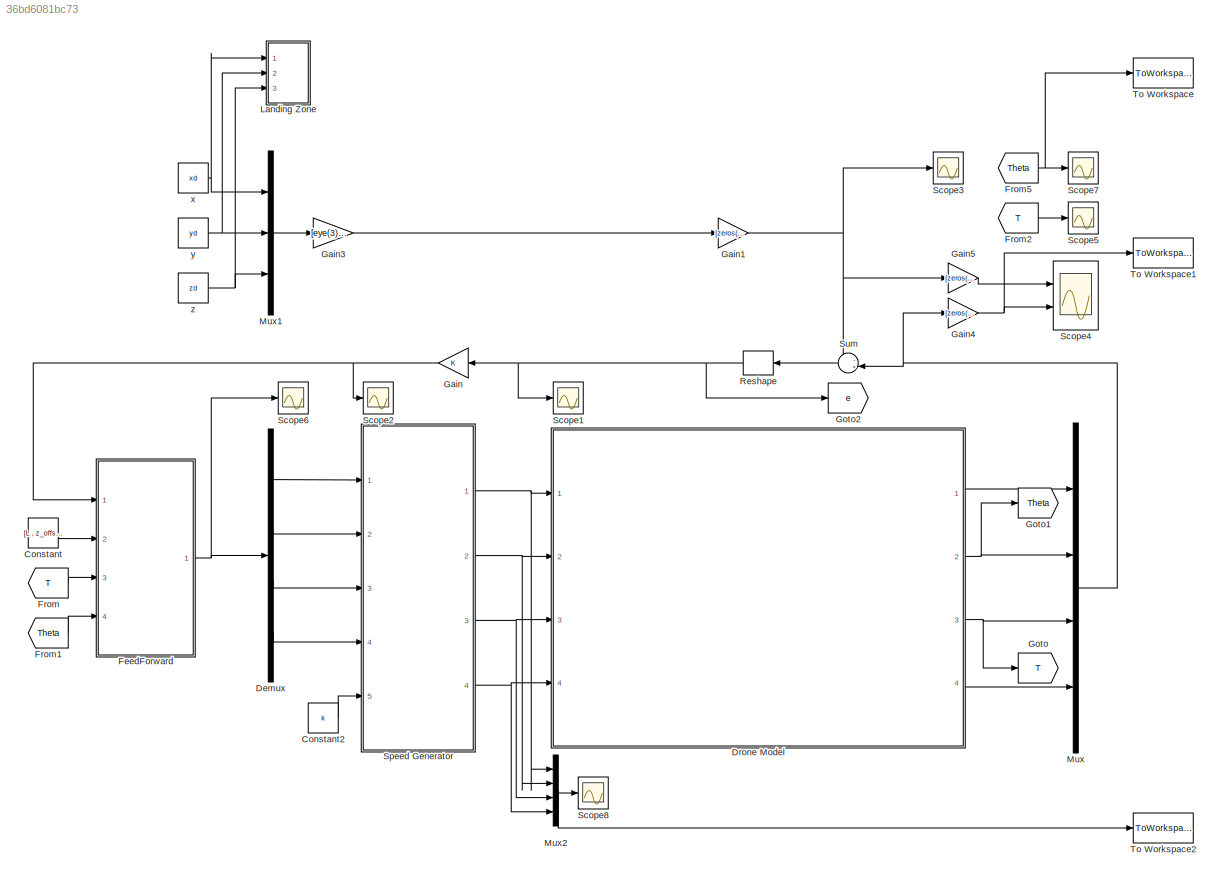
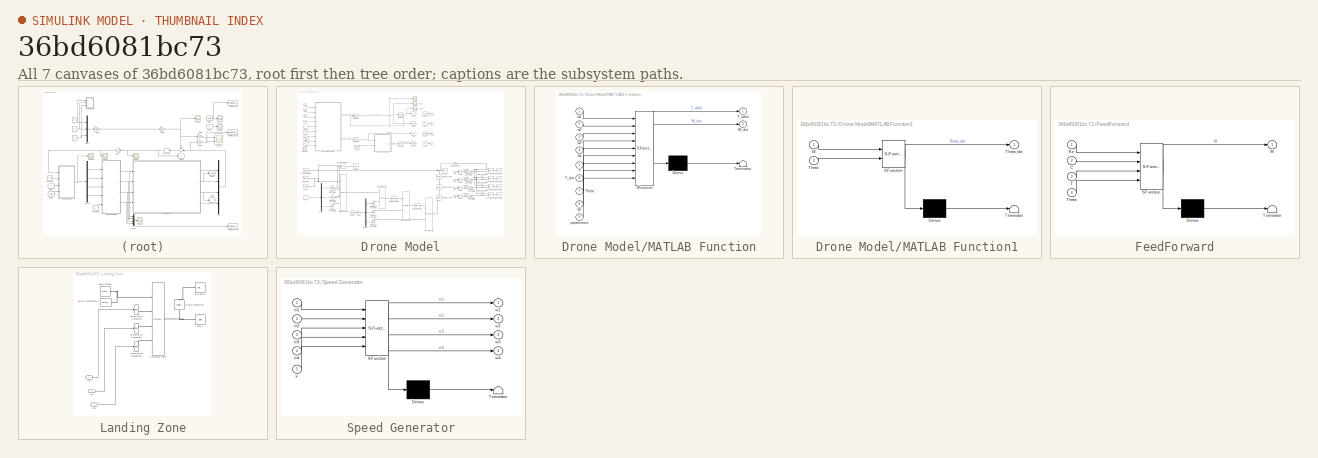
[diagram: thumbnail index - all 7 canvases of the model, root first then tree order]
MODEL slx_36bd6081bc73
KIND model
CONFIG AbsTol = auto
CONFIG EnableMultiTasking = off
CONFIG FixedStep = 0.001
CONFIG MaxStep = 0.001
CONFIG MinStep = 0.0001
CONFIG RelTol = 1e-3
CONFIG SampleTimeConstraint = Unconstrained
CONFIG Solver = ode45
CONFIG SolverName = ode45
CONFIG StartTime = 0.0
CONFIG StopTime = 30
BLOCK [Constant] Constant
  Value = [L , z_offset , r , mq , g]
BLOCK [Constant] Constant2
  Value = k
BLOCK [Demux] Demux
  DisplayOption = bar
  Ports = [1, 4]
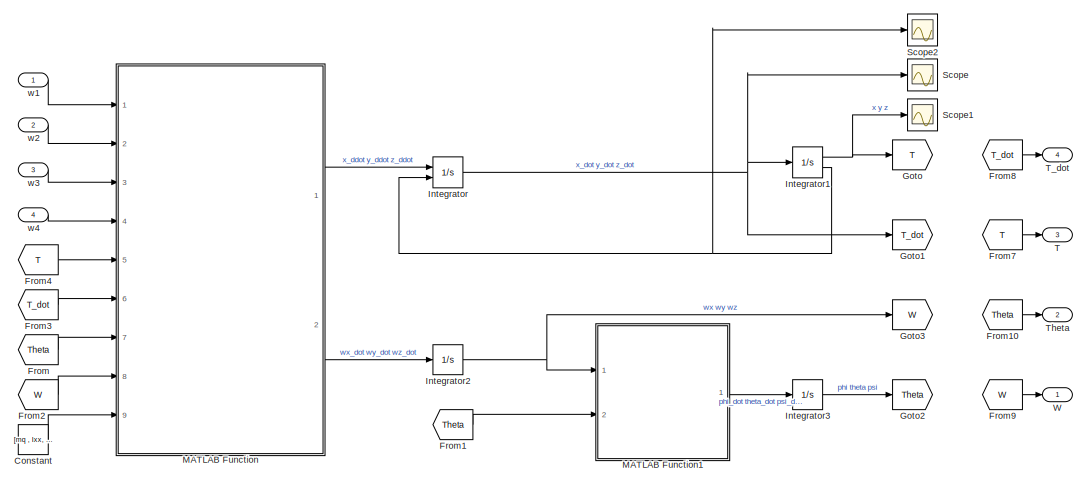
[diagram: Drone Model - part 1/3, top center region]
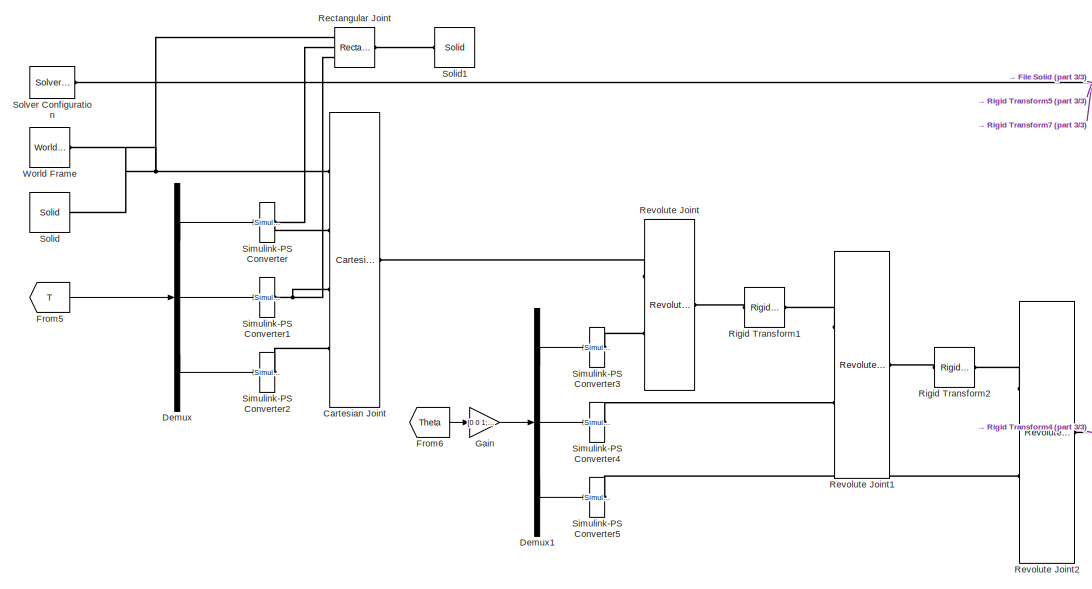
[diagram: Drone Model - part 2/3, bottom left region]
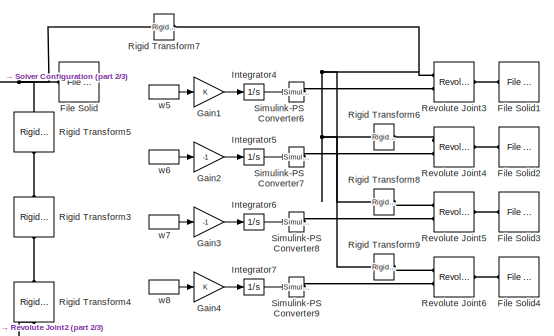
[diagram: Drone Model - part 3/3, middle right region]
BLOCK [SubSystem] Drone Model
  Ports = [4, 4]
  RequestExecContextInheritance = off
BLOCK [Reference] Drone Model/Cartesian Joint  REF=sm_lib/Joints/Cartesian
Joint
  Ports = [0, 0, 0, 0, 0, 4, 1]
  SourceBlock = sm_lib/Joints/Cartesian\nJoint
  SourceProductBaseCode = MS
  SourceProductName = Simscape Multibody
  SourceType = Cartesian\nJoint
BLOCK [Constant] Drone Model/Constant
  Value = [mq , Ixx, Iyy , Izz , k , L , b , kd , rho , r , z_offset , g];
BLOCK [Demux] Drone Model/Demux
  DisplayOption = bar
  Outputs = 3
  Ports = [1, 3]
BLOCK [Demux] Drone Model/Demux1
  DisplayOption = bar
  Outputs = 3
  Ports = [1, 3]
BLOCK [Reference] Drone Model/File Solid  REF=sm_lib/Body Elements/File Solid
  Ports = [0, 0, 0, 0, 0, 0, 1]
  SourceBlock = sm_lib/Body Elements/File Solid
  SourceProductBaseCode = MS
  SourceProductName = Simscape Multibody
  SourceType = File Solid
BLOCK [Reference] Drone Model/File Solid1  REF=sm_lib/Body Elements/File Solid
  Ports = [0, 0, 0, 0, 0, 0, 1]
  SourceBlock = sm_lib/Body Elements/File Solid
  SourceProductBaseCode = MS
  SourceProductName = Simscape Multibody
  SourceType = File Solid
BLOCK [Reference] Drone Model/File Solid2  REF=sm_lib/Body Elements/File Solid
  Ports = [0, 0, 0, 0, 0, 0, 1]
  SourceBlock = sm_lib/Body Elements/File Solid
  SourceProductBaseCode = MS
  SourceProductName = Simscape Multibody
  SourceType = File Solid
BLOCK [Reference] Drone Model/File Solid3  REF=sm_lib/Body Elements/File Solid
  Ports = [0, 0, 0, 0, 0, 0, 1]
  SourceBlock = sm_lib/Body Elements/File Solid
  SourceProductBaseCode = MS
  SourceProductName = Simscape Multibody
  SourceType = File Solid
BLOCK [Reference] Drone Model/File Solid4  REF=sm_lib/Body Elements/File Solid
  Ports = [0, 0, 0, 0, 0, 0, 1]
  SourceBlock = sm_lib/Body Elements/File Solid
  SourceProductBaseCode = MS
  SourceProductName = Simscape Multibody
  SourceType = File Solid
BLOCK [From] Drone Model/From
  GotoTag = Theta
BLOCK [From] Drone Model/From1
  GotoTag = Theta
BLOCK [From] Drone Model/From10
  GotoTag = Theta
BLOCK [From] Drone Model/From2
  GotoTag = W
BLOCK [From] Drone Model/From3
  GotoTag = T_dot
BLOCK [From] Drone Model/From4
  GotoTag = T
BLOCK [From] Drone Model/From5
  GotoTag = T
BLOCK [From] Drone Model/From6
  GotoTag = Theta
BLOCK [From] Drone Model/From7
  GotoTag = T
BLOCK [From] Drone Model/From8
  GotoTag = T_dot
BLOCK [From] Drone Model/From9
  GotoTag = W
BLOCK [Gain] Drone Model/Gain
  Gain = [0 0 1;0 1 0;1 0 0]
  Multiplication = Matrix(K*u)
  OutDataTypeStr = Inherit: Inherit via internal rule
  ParamDataTypeStr = Inherit: Inherit via internal rule
  SaturateOnIntegerOverflow = off
BLOCK [Gain] Drone Model/Gain1
  OutDataTypeStr = Inherit: Inherit via internal rule
  ParamDataTypeStr = Inherit: Inherit via internal rule
  SaturateOnIntegerOverflow = off
BLOCK [Gain] Drone Model/Gain2
  Gain = -1
  OutDataTypeStr = Inherit: Inherit via internal rule
  ParamDataTypeStr = Inherit: Inherit via internal rule
  SaturateOnIntegerOverflow = off
BLOCK [Gain] Drone Model/Gain3
  Gain = -1
  OutDataTypeStr = Inherit: Inherit via internal rule
  ParamDataTypeStr = Inherit: Inherit via internal rule
  SaturateOnIntegerOverflow = off
BLOCK [Gain] Drone Model/Gain4
  OutDataTypeStr = Inherit: Inherit via internal rule
  ParamDataTypeStr = Inherit: Inherit via internal rule
  SaturateOnIntegerOverflow = off
BLOCK [Goto] Drone Model/Goto
  GotoTag = T
BLOCK [Goto] Drone Model/Goto1
  GotoTag = T_dot
BLOCK [Goto] Drone Model/Goto2
  GotoTag = Theta
BLOCK [Goto] Drone Model/Goto3
  GotoTag = W
BLOCK [Integrator] Drone Model/Integrator
  ExternalReset = either
  InitialCondition = [0;0;0]
  Ports = [2, 1]
BLOCK [Integrator] Drone Model/Integrator1
  InitialCondition = [0;0;1]
  LimitOutput = on
  LowerSaturationLimit = [-inf;-inf;0]
  Ports = [1, 2]
  ShowSaturationPort = on
  UpperSaturationLimit = [inf;inf;inf]
BLOCK [Integrator] Drone Model/Integrator2
  InitialCondition = [0;0;0]
  Ports = [1, 1]
BLOCK [Integrator] Drone Model/Integrator3
  InitialCondition = [0;0;0]
  Ports = [1, 1]
BLOCK [Integrator] Drone Model/Integrator4
  Ports = [1, 1]
BLOCK [Integrator] Drone Model/Integrator5
  Ports = [1, 1]
BLOCK [Integrator] Drone Model/Integrator6
  Ports = [1, 1]
BLOCK [Integrator] Drone Model/Integrator7
  Ports = [1, 1]
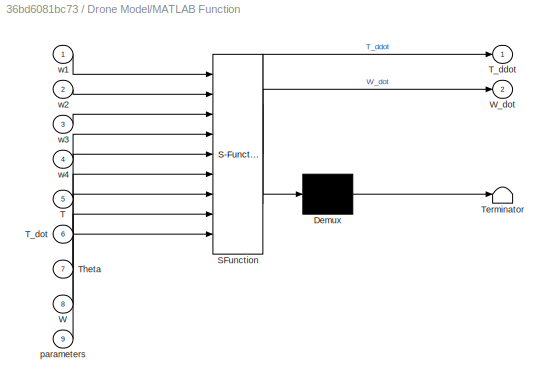
BLOCK [SubSystem] Drone Model/MATLAB Function
  ErrorFcn = Stateflow.Translate.translate
  PermitHierarchicalResolution = ExplicitOnly
  Ports = [9, 2]
  RequestExecContextInheritance = off
  SFBlockType = MATLAB Function
  TreatAsAtomicUnit = on
BLOCK [Demux] Drone Model/MATLAB Function/ Demux 
  Outputs = 1
  Ports = [1, 1]
BLOCK [S-Function] Drone Model/MATLAB Function/ SFunction 
  EnableBusSupport = on
  FunctionName = sf_sfun
  PortCounts = [9 3]
  Ports = [9, 3]
  SFcnIsStateOwnerBlock = off
  SFunctionDeploymentMode = off
  Tag = Stateflow S-Function quad_simulation_with_linearization_around_wrench 2
BLOCK [Terminator] Drone Model/MATLAB Function/ Terminator 
BLOCK [Inport] Drone Model/MATLAB Function/T
  IconDisplay = Port number
  Port = 5
BLOCK [Outport] Drone Model/MATLAB Function/T_ddot
  IconDisplay = Port number
BLOCK [Inport] Drone Model/MATLAB Function/T_dot
  IconDisplay = Port number
  Port = 6
BLOCK [Inport] Drone Model/MATLAB Function/Theta
  IconDisplay = Port number
  Port = 7
BLOCK [Inport] Drone Model/MATLAB Function/W
  IconDisplay = Port number
  Port = 8
BLOCK [Outport] Drone Model/MATLAB Function/W_dot
  IconDisplay = Port number
  Port = 2
BLOCK [Inport] Drone Model/MATLAB Function/parameters
  IconDisplay = Port number
  Port = 9
BLOCK [Inport] Drone Model/MATLAB Function/w1
  IconDisplay = Port number
BLOCK [Inport] Drone Model/MATLAB Function/w2
  IconDisplay = Port number
  Port = 2
BLOCK [Inport] Drone Model/MATLAB Function/w3
  IconDisplay = Port number
  Port = 3
BLOCK [Inport] Drone Model/MATLAB Function/w4
  IconDisplay = Port number
  Port = 4
BLOCK [SubSystem] Drone Model/MATLAB Function1
  ErrorFcn = Stateflow.Translate.translate
  PermitHierarchicalResolution = ExplicitOnly
  Ports = [2, 1]
  RequestExecContextInheritance = off
  SFBlockType = MATLAB Function
  TreatAsAtomicUnit = on
BLOCK [Demux] Drone Model/MATLAB Function1/ Demux 
  Outputs = 1
  Ports = [1, 1]
BLOCK [S-Function] Drone Model/MATLAB Function1/ SFunction 
  EnableBusSupport = on
  FunctionName = sf_sfun
  PortCounts = [2 2]
  Ports = [2, 2]
  SFcnIsStateOwnerBlock = off
  SFunctionDeploymentMode = off
  Tag = Stateflow S-Function quad_simulation_with_linearization_around_wrench 1
BLOCK [Terminator] Drone Model/MATLAB Function1/ Terminator 
BLOCK [Inport] Drone Model/MATLAB Function1/Theta
  IconDisplay = Port number
  Port = 2
BLOCK [Outport] Drone Model/MATLAB Function1/Theta_dot
  IconDisplay = Port number
BLOCK [Inport] Drone Model/MATLAB Function1/W
  IconDisplay = Port number
BLOCK [Reference] Drone Model/Rectangular Joint  REF=sm_lib/Joints/Rectangular
Joint
  Ports = [0, 0, 0, 0, 0, 3, 1]
  SourceBlock = sm_lib/Joints/Rectangular\nJoint
  SourceProductBaseCode = MS
  SourceProductName = Simscape Multibody
  SourceType = Rectangular\nJoint
BLOCK [Reference] Drone Model/Revolute Joint  REF=sm_lib/Joints/Revolute Joint
  Ports = [0, 0, 0, 0, 0, 2, 1]
  SourceBlock = sm_lib/Joints/Revolute Joint
  SourceProductBaseCode = MS
  SourceProductName = Simscape Multibody
  SourceType = Revolute Joint
BLOCK [Reference] Drone Model/Revolute Joint1  REF=sm_lib/Joints/Revolute Joint
  Ports = [0, 0, 0, 0, 0, 2, 1]
  SourceBlock = sm_lib/Joints/Revolute Joint
  SourceProductBaseCode = MS
  SourceProductName = Simscape Multibody
  SourceType = Revolute Joint
BLOCK [Reference] Drone Model/Revolute Joint2  REF=sm_lib/Joints/Revolute Joint
  Ports = [0, 0, 0, 0, 0, 2, 1]
  SourceBlock = sm_lib/Joints/Revolute Joint
  SourceProductBaseCode = MS
  SourceProductName = Simscape Multibody
  SourceType = Revolute Joint
BLOCK [Reference] Drone Model/Revolute Joint3  REF=sm_lib/Joints/Revolute Joint
  Ports = [0, 0, 0, 0, 0, 2, 1]
  SourceBlock = sm_lib/Joints/Revolute Joint
  SourceProductBaseCode = MS
  SourceProductName = Simscape Multibody
  SourceType = Revolute Joint
BLOCK [Reference] Drone Model/Revolute Joint4  REF=sm_lib/Joints/Revolute Joint
  Ports = [0, 0, 0, 0, 0, 2, 1]
  SourceBlock = sm_lib/Joints/Revolute Joint
  SourceProductBaseCode = MS
  SourceProductName = Simscape Multibody
  SourceType = Revolute Joint
BLOCK [Reference] Drone Model/Revolute Joint5  REF=sm_lib/Joints/Revolute Joint
  Ports = [0, 0, 0, 0, 0, 2, 1]
  SourceBlock = sm_lib/Joints/Revolute Joint
  SourceProductBaseCode = MS
  SourceProductName = Simscape Multibody
  SourceType = Revolute Joint
BLOCK [Reference] Drone Model/Revolute Joint6  REF=sm_lib/Joints/Revolute Joint
  Ports = [0, 0, 0, 0, 0, 2, 1]
  SourceBlock = sm_lib/Joints/Revolute Joint
  SourceProductBaseCode = MS
  SourceProductName = Simscape Multibody
  SourceType = Revolute Joint
BLOCK [Reference] Drone Model/Rigid Transform1  REF=sm_lib/Frames and
Transforms/Rigid
Transform
  Ports = [0, 0, 0, 0, 0, 1, 1]
  SourceBlock = sm_lib/Frames and\nTransforms/Rigid\nTransform
  SourceProductBaseCode = MS
  SourceProductName = Simscape Multibody
  SourceType = Rigid\nTransform
BLOCK [Reference] Drone Model/Rigid Transform2  REF=sm_lib/Frames and
Transforms/Rigid
Transform
  Ports = [0, 0, 0, 0, 0, 1, 1]
  SourceBlock = sm_lib/Frames and\nTransforms/Rigid\nTransform
  SourceProductBaseCode = MS
  SourceProductName = Simscape Multibody
  SourceType = Rigid\nTransform
BLOCK [Reference] Drone Model/Rigid Transform3  REF=sm_lib/Frames and
Transforms/Rigid
Transform
  Ports = [0, 0, 0, 0, 0, 1, 1]
  SourceBlock = sm_lib/Frames and\nTransforms/Rigid\nTransform
  SourceProductBaseCode = MS
  SourceProductName = Simscape Multibody
  SourceType = Rigid\nTransform
BLOCK [Reference] Drone Model/Rigid Transform4  REF=sm_lib/Frames and
Transforms/Rigid
Transform
  Ports = [0, 0, 0, 0, 0, 1, 1]
  SourceBlock = sm_lib/Frames and\nTransforms/Rigid\nTransform
  SourceProductBaseCode = MS
  SourceProductName = Simscape Multibody
  SourceType = Rigid\nTransform
BLOCK [Reference] Drone Model/Rigid Transform5  REF=sm_lib/Frames and
Transforms/Rigid
Transform
  Ports = [0, 0, 0, 0, 0, 1, 1]
  SourceBlock = sm_lib/Frames and\nTransforms/Rigid\nTransform
  SourceProductBaseCode = MS
  SourceProductName = Simscape Multibody
  SourceType = Rigid\nTransform
BLOCK [Reference] Drone Model/Rigid Transform6  REF=sm_lib/Frames and
Transforms/Rigid
Transform
  Ports = [0, 0, 0, 0, 0, 1, 1]
  SourceBlock = sm_lib/Frames and\nTransforms/Rigid\nTransform
  SourceProductBaseCode = MS
  SourceProductName = Simscape Multibody
  SourceType = Rigid\nTransform
BLOCK [Reference] Drone Model/Rigid Transform7  REF=sm_lib/Frames and
Transforms/Rigid
Transform
  Ports = [0, 0, 0, 0, 0, 1, 1]
  SourceBlock = sm_lib/Frames and\nTransforms/Rigid\nTransform
  SourceProductBaseCode = MS
  SourceProductName = Simscape Multibody
  SourceType = Rigid\nTransform
BLOCK [Reference] Drone Model/Rigid Transform8  REF=sm_lib/Frames and
Transforms/Rigid
Transform
  Ports = [0, 0, 0, 0, 0, 1, 1]
  SourceBlock = sm_lib/Frames and\nTransforms/Rigid\nTransform
  SourceProductBaseCode = MS
  SourceProductName = Simscape Multibody
  SourceType = Rigid\nTransform
BLOCK [Reference] Drone Model/Rigid Transform9  REF=sm_lib/Frames and
Transforms/Rigid
Transform
  Ports = [0, 0, 0, 0, 0, 1, 1]
  SourceBlock = sm_lib/Frames and\nTransforms/Rigid\nTransform
  SourceProductBaseCode = MS
  SourceProductName = Simscape Multibody
  SourceType = Rigid\nTransform
BLOCK [Scope] Drone Model/Scope
  Floating = off
  NumInputPorts = 1
  Ports = [1]
  ScopeSpecificationString = Simulink.scopes.TimeScopeBlockCfg('CurrentConfiguration', extmgr.ConfigurationSet(extmgr.Configuration('Core','General UI',true),extmgr.Configuration('Core','Source UI',true),extmgr.Configuration('Sources','WiredSimulink',true),extmgr.Configuration('Visuals','Time Domain',true,'SerializedDisplays',{struct('MinYLimReal','-1.15491','MaxYLimReal','0.61229','YLabelReal','','MinYLimMag','0.00000','MaxY...<+1412ch>
BLOCK [Scope] Drone Model/Scope1
  Floating = off
  NumInputPorts = 1
  Ports = [1]
  ScopeSpecificationString = Simulink.scopes.TimeScopeBlockCfg('CurrentConfiguration', extmgr.ConfigurationSet(extmgr.Configuration('Core','General UI',true),extmgr.Configuration('Core','Source UI',true),extmgr.Configuration('Sources','WiredSimulink',true,'DataLoggingVariableName','ScopeData1'),extmgr.Configuration('Visuals','Time Domain',true,'SerializedDisplays',{struct('MinYLimReal','-12.5','MaxYLimReal','112.5','YLabelRea...<+1401ch>
BLOCK [Scope] Drone Model/Scope2
  Floating = off
  NumInputPorts = 1
  Ports = [1]
  ScopeSpecificationString = Simulink.scopes.TimeScopeBlockCfg('CurrentConfiguration', extmgr.ConfigurationSet(extmgr.Configuration('Core','General UI',true),extmgr.Configuration('Core','Source UI',true),extmgr.Configuration('Sources','WiredSimulink',true,'DataLoggingVariableName','ScopeData2'),extmgr.Configuration('Visuals','Time Domain',true,'SerializedDisplays',{struct('MinYLimReal','-1.125','MaxYLimReal','0.125','YLabelRe...<+1425ch>
BLOCK [Reference] Drone Model/Simulink-PS Converter  REF=nesl_utility/Simulink-PS
Converter
  Ports = [1, 0, 0, 0, 0, 0, 1]
  SourceBlock = nesl_utility/Simulink-PS\nConverter
  SourceProductBaseCode = SS
  SourceProductName = Simscape
  SourceType = Simulink-PS\nConverter
BLOCK [Reference] Drone Model/Simulink-PS Converter1  REF=nesl_utility/Simulink-PS
Converter
  Ports = [1, 0, 0, 0, 0, 0, 1]
  SourceBlock = nesl_utility/Simulink-PS\nConverter
  SourceProductBaseCode = SS
  SourceProductName = Simscape
  SourceType = Simulink-PS\nConverter
BLOCK [Reference] Drone Model/Simulink-PS Converter2  REF=nesl_utility/Simulink-PS
Converter
  Ports = [1, 0, 0, 0, 0, 0, 1]
  SourceBlock = nesl_utility/Simulink-PS\nConverter
  SourceProductBaseCode = SS
  SourceProductName = Simscape
  SourceType = Simulink-PS\nConverter
BLOCK [Reference] Drone Model/Simulink-PS Converter3  REF=nesl_utility/Simulink-PS
Converter
  Ports = [1, 0, 0, 0, 0, 0, 1]
  SourceBlock = nesl_utility/Simulink-PS\nConverter
  SourceProductBaseCode = SS
  SourceProductName = Simscape
  SourceType = Simulink-PS\nConverter
BLOCK [Reference] Drone Model/Simulink-PS Converter4  REF=nesl_utility/Simulink-PS
Converter
  Ports = [1, 0, 0, 0, 0, 0, 1]
  SourceBlock = nesl_utility/Simulink-PS\nConverter
  SourceProductBaseCode = SS
  SourceProductName = Simscape
  SourceType = Simulink-PS\nConverter
BLOCK [Reference] Drone Model/Simulink-PS Converter5  REF=nesl_utility/Simulink-PS
Converter
  Ports = [1, 0, 0, 0, 0, 0, 1]
  SourceBlock = nesl_utility/Simulink-PS\nConverter
  SourceProductBaseCode = SS
  SourceProductName = Simscape
  SourceType = Simulink-PS\nConverter
BLOCK [Reference] Drone Model/Simulink-PS Converter6  REF=nesl_utility/Simulink-PS
Converter
  Ports = [1, 0, 0, 0, 0, 0, 1]
  SourceBlock = nesl_utility/Simulink-PS\nConverter
  SourceProductBaseCode = SS
  SourceProductName = Simscape
  SourceType = Simulink-PS\nConverter
BLOCK [Reference] Drone Model/Simulink-PS Converter7  REF=nesl_utility/Simulink-PS
Converter
  Ports = [1, 0, 0, 0, 0, 0, 1]
  SourceBlock = nesl_utility/Simulink-PS\nConverter
  SourceProductBaseCode = SS
  SourceProductName = Simscape
  SourceType = Simulink-PS\nConverter
BLOCK [Reference] Drone Model/Simulink-PS Converter8  REF=nesl_utility/Simulink-PS
Converter
  Ports = [1, 0, 0, 0, 0, 0, 1]
  SourceBlock = nesl_utility/Simulink-PS\nConverter
  SourceProductBaseCode = SS
  SourceProductName = Simscape
  SourceType = Simulink-PS\nConverter
BLOCK [Reference] Drone Model/Simulink-PS Converter9  REF=nesl_utility/Simulink-PS
Converter
  Ports = [1, 0, 0, 0, 0, 0, 1]
  SourceBlock = nesl_utility/Simulink-PS\nConverter
  SourceProductBaseCode = SS
  SourceProductName = Simscape
  SourceType = Simulink-PS\nConverter
BLOCK [Reference] Drone Model/Solid  REF=sm_lib/Body Elements/Solid
  Ports = [0, 0, 0, 0, 0, 0, 1]
  SourceBlock = sm_lib/Body Elements/Solid
  SourceProductBaseCode = MS
  SourceProductName = Simscape Multibody
  SourceType = Solid
BLOCK [Reference] Drone Model/Solid1  REF=sm_lib/Body Elements/Solid
  Ports = [0, 0, 0, 0, 0, 0, 1]
  SourceBlock = sm_lib/Body Elements/Solid
  SourceProductBaseCode = MS
  SourceProductName = Simscape Multibody
  SourceType = Solid
BLOCK [Reference] Drone Model/Solver Configuration  REF=nesl_utility/Solver
Configuration
  Ports = [0, 0, 0, 0, 0, 0, 1]
  SourceBlock = nesl_utility/Solver\nConfiguration
  SourceProductBaseCode = SS
  SourceProductName = Simscape
  SourceType = Solver\nConfiguration
BLOCK [Outport] Drone Model/T
  IconDisplay = Port number
  Port = 3
BLOCK [Outport] Drone Model/T_dot
  IconDisplay = Port number
  Port = 4
BLOCK [Outport] Drone Model/Theta
  IconDisplay = Port number
  Port = 2
BLOCK [Outport] Drone Model/W
  IconDisplay = Port number
BLOCK [Reference] Drone Model/World Frame  REF=sm_lib/Frames and
Transforms/World Frame
  Ports = [0, 0, 0, 0, 0, 0, 1]
  SourceBlock = sm_lib/Frames and\nTransforms/World Frame
  SourceProductBaseCode = MS
  SourceProductName = Simscape Multibody
  SourceType = World Frame
BLOCK [Inport] Drone Model/w1
  IconDisplay = Port number
BLOCK [Inport] Drone Model/w2
  IconDisplay = Port number
  Port = 2
BLOCK [Inport] Drone Model/w3
  IconDisplay = Port number
  Port = 3
BLOCK [Inport] Drone Model/w4
  IconDisplay = Port number
  Port = 4
BLOCK [InportShadow] Drone Model/w5
  IconDisplay = Port number
BLOCK [InportShadow] Drone Model/w6
  IconDisplay = Port number
  Port = 2
BLOCK [InportShadow] Drone Model/w7
  IconDisplay = Port number
  Port = 3
BLOCK [InportShadow] Drone Model/w8
  IconDisplay = Port number
  Port = 4
BLOCK [SubSystem] FeedForward
  ErrorFcn = Stateflow.Translate.translate
  PermitHierarchicalResolution = ExplicitOnly
  Ports = [4, 1]
  RequestExecContextInheritance = off
  SFBlockType = MATLAB Function
  TreatAsAtomicUnit = on
BLOCK [Demux] FeedForward/ Demux 
  Outputs = 1
  Ports = [1, 1]
BLOCK [S-Function] FeedForward/ SFunction 
  EnableBusSupport = on
  FunctionName = sf_sfun
  PortCounts = [4 2]
  Ports = [4, 2]
  SFcnIsStateOwnerBlock = off
  SFunctionDeploymentMode = off
  Tag = Stateflow S-Function quad_simulation_with_linearization_around_wrench 4
BLOCK [Terminator] FeedForward/ Terminator 
BLOCK [Inport] FeedForward/C
  IconDisplay = Port number
  Port = 2
BLOCK [Inport] FeedForward/Ke
  IconDisplay = Port number
BLOCK [Outport] FeedForward/M
  IconDisplay = Port number
BLOCK [Inport] FeedForward/T
  IconDisplay = Port number
  Port = 3
BLOCK [Inport] FeedForward/Theta
  IconDisplay = Port number
  Port = 4
BLOCK [From] From
  GotoTag = T
BLOCK [From] From1
  GotoTag = Theta
BLOCK [From] From2
  GotoTag = T
BLOCK [From] From5
  GotoTag = Theta
BLOCK [Gain] Gain
  Gain = K
  Multiplication = Matrix(K*u) (u vector)
  OutDataTypeStr = Inherit: Inherit via internal rule
  ParamDataTypeStr = Inherit: Inherit via internal rule
  SaturateOnIntegerOverflow = off
BLOCK [Gain] Gain1
  Gain = [zeros(6);diag([1,1,1,0,0,0])]
  Multiplication = Matrix(K*u) (u vector)
  OutDataTypeStr = Inherit: Inherit via internal rule
  ParamDataTypeStr = Inherit: Inherit via internal rule
  SaturateOnIntegerOverflow = off
BLOCK [Gain] Gain3
  Gain = [eye(3);zeros(3)]
  Multiplication = Matrix(K*u) (u vector)
  OutDataTypeStr = Inherit: Inherit via internal rule
  ParamDataTypeStr = Inherit: Inherit via internal rule
  SaturateOnIntegerOverflow = off
BLOCK [Gain] Gain4
  Gain = [zeros(3,6) , eye(3) , zeros(3)]
  Multiplication = Matrix(K*u) (u vector)
  OutDataTypeStr = Inherit: Inherit via internal rule
  ParamDataTypeStr = Inherit: Inherit via internal rule
  SaturateOnIntegerOverflow = off
BLOCK [Gain] Gain5
  Gain = [zeros(3,6) , eye(3) , zeros(3)]
  Multiplication = Matrix(K*u) (u vector)
  OutDataTypeStr = Inherit: Inherit via internal rule
  ParamDataTypeStr = Inherit: Inherit via internal rule
  SaturateOnIntegerOverflow = off
BLOCK [Goto] Goto
  GotoTag = T
BLOCK [Goto] Goto1
  GotoTag = Theta
BLOCK [Goto] Goto2
  GotoTag = e
BLOCK [SubSystem] Landing Zone
  Ports = [3]
  RequestExecContextInheritance = off
BLOCK [Reference] Landing Zone/Cartesian Joint  REF=sm_lib/Joints/Cartesian
Joint
  Ports = [0, 0, 0, 0, 0, 4, 1]
  SourceBlock = sm_lib/Joints/Cartesian\nJoint
  SourceProductBaseCode = MS
  SourceProductName = Simscape Multibody
  SourceType = Cartesian\nJoint
BLOCK [Reference] Landing Zone/File Solid  REF=sm_lib/Body Elements/File Solid
  Ports = [0, 0, 0, 0, 0, 0, 1]
  SourceBlock = sm_lib/Body Elements/File Solid
  SourceProductBaseCode = MS
  SourceProductName = Simscape Multibody
  SourceType = File Solid
BLOCK [Inport] Landing Zone/In1
  IconDisplay = Port number
BLOCK [Inport] Landing Zone/In2
  IconDisplay = Port number
  Port = 2
BLOCK [Inport] Landing Zone/In3
  IconDisplay = Port number
  Port = 3
BLOCK [Reference] Landing Zone/Rigid Transform5  REF=sm_lib/Frames and
Transforms/Rigid
Transform
  Ports = [0, 0, 0, 0, 0, 1, 1]
  SourceBlock = sm_lib/Frames and\nTransforms/Rigid\nTransform
  SourceProductBaseCode = MS
  SourceProductName = Simscape Multibody
  SourceType = Rigid\nTransform
BLOCK [Reference] Landing Zone/Simulink-PS Converter  REF=nesl_utility/Simulink-PS
Converter
  Ports = [1, 0, 0, 0, 0, 0, 1]
  SourceBlock = nesl_utility/Simulink-PS\nConverter
  SourceProductBaseCode = SS
  SourceProductName = Simscape
  SourceType = Simulink-PS\nConverter
BLOCK [Reference] Landing Zone/Simulink-PS Converter1  REF=nesl_utility/Simulink-PS
Converter
  Ports = [1, 0, 0, 0, 0, 0, 1]
  SourceBlock = nesl_utility/Simulink-PS\nConverter
  SourceProductBaseCode = SS
  SourceProductName = Simscape
  SourceType = Simulink-PS\nConverter
BLOCK [Reference] Landing Zone/Simulink-PS Converter2  REF=nesl_utility/Simulink-PS
Converter
  Ports = [1, 0, 0, 0, 0, 0, 1]
  SourceBlock = nesl_utility/Simulink-PS\nConverter
  SourceProductBaseCode = SS
  SourceProductName = Simscape
  SourceType = Simulink-PS\nConverter
BLOCK [Reference] Landing Zone/Solid  REF=sm_lib/Body Elements/Solid
  Ports = [0, 0, 0, 0, 0, 0, 1]
  SourceBlock = sm_lib/Body Elements/Solid
  SourceProductBaseCode = MS
  SourceProductName = Simscape Multibody
  SourceType = Solid
BLOCK [Reference] Landing Zone/Solver Configuration  REF=nesl_utility/Solver
Configuration
  Ports = [0, 0, 0, 0, 0, 0, 1]
  SourceBlock = nesl_utility/Solver\nConfiguration
  SourceProductBaseCode = SS
  SourceProductName = Simscape
  SourceType = Solver\nConfiguration
BLOCK [Reference] Landing Zone/World Frame  REF=sm_lib/Frames and
Transforms/World Frame
  Ports = [0, 0, 0, 0, 0, 0, 1]
  SourceBlock = sm_lib/Frames and\nTransforms/World Frame
  SourceProductBaseCode = MS
  SourceProductName = Simscape Multibody
  SourceType = World Frame
BLOCK [Mux] Mux
  DisplayOption = bar
  Ports = [4, 1]
BLOCK [Mux] Mux1
  DisplayOption = bar
  Inputs = 3
  Ports = [3, 1]
BLOCK [Mux] Mux2
  DisplayOption = bar
  Ports = [4, 1]
BLOCK [Reshape] Reshape
  OutputDimensionality = Column vector (2-D)
  Ports = [1, 1]
BLOCK [Scope] Scope1
  Floating = off
  NumInputPorts = 1
  Ports = [1]
  ScopeSpecificationString = Simulink.scopes.TimeScopeBlockCfg('CurrentConfiguration', extmgr.ConfigurationSet(extmgr.Configuration('Core','General UI',true),extmgr.Configuration('Core','Source UI',true),extmgr.Configuration('Sources','WiredSimulink',true,'DataLoggingVariableName','ScopeData2'),extmgr.Configuration('Visuals','Time Domain',true,'SerializedDisplays',{struct('MinYLimReal','-0.71366','MaxYLimReal','0.52802','YLab...<+1853ch>
BLOCK [Scope] Scope2
  Floating = off
  NumInputPorts = 1
  Ports = [1]
  ScopeSpecificationString = Simulink.scopes.TimeScopeBlockCfg('CurrentConfiguration', extmgr.ConfigurationSet(extmgr.Configuration('Core','General UI',true),extmgr.Configuration('Core','Source UI',true),extmgr.Configuration('Sources','WiredSimulink',true,'DataLoggingVariableName','ScopeData3'),extmgr.Configuration('Visuals','Time Domain',true,'SerializedDisplays',{struct('MinYLimReal','-0.01015','MaxYLimReal','0.06448','YLab...<+1490ch>
BLOCK [Scope] Scope3
  Floating = off
  NumInputPorts = 1
  Ports = [1]
  ScopeSpecificationString = Simulink.scopes.TimeScopeBlockCfg('CurrentConfiguration', extmgr.ConfigurationSet(extmgr.Configuration('Core','General UI',true),extmgr.Configuration('Core','Source UI',true),extmgr.Configuration('Sources','WiredSimulink',true,'DataLoggingVariableName','ScopeData1'),extmgr.Configuration('Visuals','Time Domain',true,'SerializedDisplays',{struct('MinYLimReal','-0.29576','MaxYLimReal','0.25532','YLab...<+1864ch>
BLOCK [Scope] Scope4
  Floating = off
  NumInputPorts = 2
  Ports = [2]
  ScopeSpecificationString = Simulink.scopes.TimeScopeBlockCfg('CurrentConfiguration', extmgr.ConfigurationSet(extmgr.Configuration('Core','General UI',true,'FigureColor',[1 1 1]),extmgr.Configuration('Core','Source UI',true),extmgr.Configuration('Sources','WiredSimulink',true,'DataLoggingVariableName','ScopeData1'),extmgr.Configuration('Visuals','Time Domain',true,'SerializedDisplays',{struct('MinYLimReal','-0.25','MaxYLimRe...<+2347ch>
BLOCK [Scope] Scope5
  Floating = off
  NumInputPorts = 1
  Ports = [1]
  ScopeSpecificationString = Simulink.scopes.TimeScopeBlockCfg('CurrentConfiguration', extmgr.ConfigurationSet(extmgr.Configuration('Core','General UI',true),extmgr.Configuration('Core','Source UI',true),extmgr.Configuration('Sources','WiredSimulink',true,'DataLoggingVariableName','ScopeData1'),extmgr.Configuration('Visuals','Time Domain',true,'SerializedDisplays',{struct('MinYLimReal','-0.24621','MaxYLimReal','2.21588','YLab...<+1545ch>
BLOCK [Scope] Scope6
  Floating = off
  NumInputPorts = 1
  Ports = [1]
  ScopeSpecificationString = Simulink.scopes.TimeScopeBlockCfg('CurrentConfiguration', extmgr.ConfigurationSet(extmgr.Configuration('Core','General UI',true),extmgr.Configuration('Core','Source UI',true),extmgr.Configuration('Sources','WiredSimulink',true,'DataLoggingVariableName','ScopeData6'),extmgr.Configuration('Visuals','Time Domain',true,'SerializedDisplays',{struct('MinYLimReal','0.91094','MaxYLimReal','0.94584','YLabe...<+1516ch>
BLOCK [Scope] Scope7
  Floating = off
  NumInputPorts = 1
  Ports = [1]
  ScopeSpecificationString = Simulink.scopes.TimeScopeBlockCfg('CurrentConfiguration', extmgr.ConfigurationSet(extmgr.Configuration('Core','General UI',true),extmgr.Configuration('Core','Source UI',true),extmgr.Configuration('Sources','WiredSimulink',true),extmgr.Configuration('Visuals','Time Domain',true,'SerializedDisplays',{struct('MinYLimReal','-0.10339','MaxYLimReal','0.16452','YLabelReal','','MinYLimMag','0.00000','MaxY...<+1522ch>
BLOCK [Scope] Scope8
  Floating = off
  NumInputPorts = 1
  Ports = [1]
  ScopeSpecificationString = Simulink.scopes.TimeScopeBlockCfg('CurrentConfiguration', extmgr.ConfigurationSet(extmgr.Configuration('Core','General UI',true,'FigureColor',[1 1 1]),extmgr.Configuration('Core','Source UI',true),extmgr.Configuration('Sources','WiredSimulink',true,'DataLoggingVariableName','ScopeData2'),extmgr.Configuration('Visuals','Time Domain',true,'SerializedDisplays',{struct('MinYLimReal','674.89648','MaxYL...<+2123ch>
BLOCK [SubSystem] Speed Generator
  ErrorFcn = Stateflow.Translate.translate
  PermitHierarchicalResolution = ExplicitOnly
  Ports = [5, 4]
  RequestExecContextInheritance = off
  SFBlockType = MATLAB Function
  TreatAsAtomicUnit = on
BLOCK [Demux] Speed Generator/ Demux 
  Outputs = 1
  Ports = [1, 1]
BLOCK [S-Function] Speed Generator/ SFunction 
  EnableBusSupport = on
  FunctionName = sf_sfun
  PortCounts = [5 5]
  Ports = [5, 5]
  SFcnIsStateOwnerBlock = off
  SFunctionDeploymentMode = off
  Tag = Stateflow S-Function quad_simulation_with_linearization_around_wrench 3
BLOCK [Terminator] Speed Generator/ Terminator 
BLOCK [Inport] Speed Generator/k
  IconDisplay = Port number
  Port = 5
BLOCK [Inport] Speed Generator/m1
  IconDisplay = Port number
BLOCK [Inport] Speed Generator/m2
  IconDisplay = Port number
  Port = 2
BLOCK [Inport] Speed Generator/m3
  IconDisplay = Port number
  Port = 3
BLOCK [Inport] Speed Generator/m4
  IconDisplay = Port number
  Port = 4
BLOCK [Outport] Speed Generator/w1
  IconDisplay = Port number
BLOCK [Outport] Speed Generator/w2
  IconDisplay = Port number
  Port = 2
BLOCK [Outport] Speed Generator/w3
  IconDisplay = Port number
  Port = 3
BLOCK [Outport] Speed Generator/w4
  IconDisplay = Port number
  Port = 4
BLOCK [Sum] Sum
  IconShape = round
  InputSameDT = off
  Inputs = -+|
  OutDataTypeStr = Inherit: Inherit via internal rule
  Ports = [2, 1]
  SaturateOnIntegerOverflow = off
BLOCK [ToWorkspace] To Workspace
  FixptAsFi = on
  MaxDataPoints = inf
  Ports = [1]
  SampleTime = -1
  Save2DSignal = 3-D array (concatenate along third dimension)
  SaveFormat = Timeseries
  VariableName = Angles
BLOCK [ToWorkspace] To Workspace1
  FixptAsFi = on
  MaxDataPoints = inf
  Ports = [1]
  SampleTime = -1
  Save2DSignal = 3-D array (concatenate along third dimension)
  SaveFormat = Timeseries
  VariableName = Positions
BLOCK [ToWorkspace] To Workspace2
  FixptAsFi = on
  MaxDataPoints = inf
  Ports = [1]
  SampleTime = -1
  Save2DSignal = 3-D array (concatenate along third dimension)
  SaveFormat = Timeseries
  VariableName = Inputs
BLOCK [Constant] x
  Value = xd
BLOCK [Constant] y
  Value = yd
BLOCK [Constant] z
  Value = zd
LINE Constant2:1 -> Speed Generator:5
LINE Constant:1 -> FeedForward:2
LINE Demux:1 -> Speed Generator:1
LINE Demux:2 -> Speed Generator:2
LINE Demux:3 -> Speed Generator:3
LINE Demux:4 -> Speed Generator:4
LINE Drone Model/Constant:1 -> Drone Model/MATLAB Function:9
LINE Drone Model/Demux1:1 -> Drone Model/Simulink-PS Converter3:1
LINE Drone Model/Demux1:2 -> Drone Model/Simulink-PS Converter4:1
LINE Drone Model/Demux1:3 -> Drone Model/Simulink-PS Converter5:1
LINE Drone Model/Demux:1 -> Drone Model/Simulink-PS Converter:1
LINE Drone Model/Demux:2 -> Drone Model/Simulink-PS Converter1:1
LINE Drone Model/Demux:3 -> Drone Model/Simulink-PS Converter2:1
LINE Drone Model/From10:1 -> Drone Model/Theta:1
LINE Drone Model/From1:1 -> Drone Model/MATLAB Function1:2
LINE Drone Model/From2:1 -> Drone Model/MATLAB Function:8
LINE Drone Model/From3:1 -> Drone Model/MATLAB Function:6
LINE Drone Model/From4:1 -> Drone Model/MATLAB Function:5
LINE Drone Model/From5:1 -> Drone Model/Demux:1
LINE Drone Model/From6:1 -> Drone Model/Gain:1
LINE Drone Model/From7:1 -> Drone Model/T:1
LINE Drone Model/From8:1 -> Drone Model/T_dot:1
LINE Drone Model/From9:1 -> Drone Model/W:1
LINE Drone Model/From:1 -> Drone Model/MATLAB Function:7
LINE Drone Model/Gain1:1 -> Drone Model/Integrator4:1
LINE Drone Model/Gain2:1 -> Drone Model/Integrator5:1
LINE Drone Model/Gain3:1 -> Drone Model/Integrator6:1
LINE Drone Model/Gain4:1 -> Drone Model/Integrator7:1
LINE Drone Model/Gain:1 -> Drone Model/Demux1:1
NET Drone Model/Integrator1:1 -> Drone Model/Goto:1, Drone Model/Scope1:1
NET Drone Model/Integrator1:2 -> Drone Model/Integrator:2, Drone Model/Scope2:1
NET Drone Model/Integrator2:1 -> Drone Model/Goto3:1, Drone Model/MATLAB Function1:1
LINE Drone Model/Integrator3:1 -> Drone Model/Goto2:1
LINE Drone Model/Integrator4:1 -> Drone Model/Simulink-PS Converter6:1
LINE Drone Model/Integrator5:1 -> Drone Model/Simulink-PS Converter7:1
LINE Drone Model/Integrator6:1 -> Drone Model/Simulink-PS Converter8:1
LINE Drone Model/Integrator7:1 -> Drone Model/Simulink-PS Converter9:1
NET Drone Model/Integrator:1 -> Drone Model/Goto1:1, Drone Model/Integrator1:1, Drone Model/Scope:1
LINE Drone Model/MATLAB Function1:1 -> Drone Model/Integrator3:1
LINE Drone Model/MATLAB Function:1 -> Drone Model/Integrator:1
LINE Drone Model/MATLAB Function:2 -> Drone Model/Integrator2:1
LINE Drone Model/w1:1 -> Drone Model/MATLAB Function:1
LINE Drone Model/w2:1 -> Drone Model/MATLAB Function:2
LINE Drone Model/w3:1 -> Drone Model/MATLAB Function:3
LINE Drone Model/w4:1 -> Drone Model/MATLAB Function:4
LINE Drone Model/w5:1 -> Drone Model/Gain1:1
LINE Drone Model/w6:1 -> Drone Model/Gain2:1
LINE Drone Model/w7:1 -> Drone Model/Gain3:1
LINE Drone Model/w8:1 -> Drone Model/Gain4:1
LINE Drone Model:1 -> Mux:1
NET Drone Model:2 -> Goto1:1, Mux:2
NET Drone Model:3 -> Goto:1, Mux:3
LINE Drone Model:4 -> Mux:4
NET FeedForward:1 -> Demux:1, Scope6:1
LINE From1:1 -> FeedForward:4
LINE From2:1 -> Scope5:1
NET From5:1 -> Scope7:1, To Workspace:1
LINE From:1 -> FeedForward:3
NET Gain1:1 -> Gain5:1, Scope3:1, Sum:1
LINE Gain3:1 -> Gain1:1
NET Gain4:1 -> Scope4:2, To Workspace1:1
LINE Gain5:1 -> Scope4:1
NET Gain:1 -> FeedForward:1, Scope2:1
LINE Landing Zone/In1:1 -> Landing Zone/Simulink-PS Converter:1
LINE Landing Zone/In2:1 -> Landing Zone/Simulink-PS Converter1:1
LINE Landing Zone/In3:1 -> Landing Zone/Simulink-PS Converter2:1
LINE Mux1:1 -> Gain3:1
NET Mux2:1 -> Scope8:1, To Workspace2:1
NET Mux:1 -> Gain4:1, Sum:2
NET Reshape:1 -> Gain:1, Goto2:1, Scope1:1
NET Speed Generator:1 -> Drone Model:1, Mux2:1
NET Speed Generator:2 -> Drone Model:2, Mux2:2
NET Speed Generator:3 -> Drone Model:3, Mux2:3
NET Speed Generator:4 -> Drone Model:4, Mux2:4
LINE Sum:1 -> Reshape:1
NET x:1 -> Landing Zone:1, Mux1:1
NET y:1 -> Landing Zone:2, Mux1:2
NET z:1 -> Landing Zone:3, Mux1:3
PNET net1: Drone Model/Cartesian Joint:LConn1 -- Drone Model/Rectangular Joint:LConn1 -- Drone Model/Solid:RConn1 -- Drone Model/World Frame:RConn1
PNET net2: Drone Model/Cartesian Joint:LConn2 -- Drone Model/Rectangular Joint:LConn2 -- Drone Model/Simulink-PS Converter:RConn1
PNET net3: Drone Model/Cartesian Joint:LConn3 -- Drone Model/Rectangular Joint:LConn3 -- Drone Model/Simulink-PS Converter1:RConn1
PLINE Drone Model/Cartesian Joint:LConn4 -- Drone Model/Simulink-PS Converter2:RConn1
PLINE Drone Model/Cartesian Joint:RConn1 -- Drone Model/Revolute Joint:LConn1
PLINE Drone Model/File Solid1:RConn1 -- Drone Model/Revolute Joint3:RConn1
PLINE Drone Model/File Solid2:RConn1 -- Drone Model/Revolute Joint4:RConn1
PLINE Drone Model/File Solid3:RConn1 -- Drone Model/Revolute Joint5:RConn1
PLINE Drone Model/File Solid4:RConn1 -- Drone Model/Revolute Joint6:RConn1
PNET net4: Drone Model/File Solid:RConn1 -- Drone Model/Rigid Transform5:RConn1 -- Drone Model/Rigid Transform7:LConn1 -- Drone Model/Solver Configuration:RConn1
PLINE Drone Model/Rectangular Joint:RConn1 -- Drone Model/Solid1:RConn1
PLINE Drone Model/Revolute Joint1:LConn1 -- Drone Model/Rigid Transform1:RConn1
PLINE Drone Model/Revolute Joint1:LConn2 -- Drone Model/Simulink-PS Converter4:RConn1
PLINE Drone Model/Revolute Joint1:RConn1 -- Drone Model/Rigid Transform2:LConn1
PLINE Drone Model/Revolute Joint2:LConn1 -- Drone Model/Rigid Transform2:RConn1
PLINE Drone Model/Revolute Joint2:LConn2 -- Drone Model/Simulink-PS Converter5:RConn1
PLINE Drone Model/Revolute Joint2:RConn1 -- Drone Model/Rigid Transform4:LConn1
PNET net5: Drone Model/Revolute Joint3:LConn1 -- Drone Model/Rigid Transform6:LConn1 -- Drone Model/Rigid Transform7:RConn1 -- Drone Model/Rigid Transform8:LConn1 -- Drone Model/Rigid Transform9:LConn1
PLINE Drone Model/Revolute Joint3:LConn2 -- Drone Model/Simulink-PS Converter6:RConn1
PLINE Drone Model/Revolute Joint4:LConn1 -- Drone Model/Rigid Transform6:RConn1
PLINE Drone Model/Revolute Joint4:LConn2 -- Drone Model/Simulink-PS Converter7:RConn1
PLINE Drone Model/Revolute Joint5:LConn1 -- Drone Model/Rigid Transform8:RConn1
PLINE Drone Model/Revolute Joint5:LConn2 -- Drone Model/Simulink-PS Converter8:RConn1
PLINE Drone Model/Revolute Joint6:LConn1 -- Drone Model/Rigid Transform9:RConn1
PLINE Drone Model/Revolute Joint6:LConn2 -- Drone Model/Simulink-PS Converter9:RConn1
PLINE Drone Model/Revolute Joint:LConn2 -- Drone Model/Simulink-PS Converter3:RConn1
PLINE Drone Model/Revolute Joint:RConn1 -- Drone Model/Rigid Transform1:LConn1
PLINE Drone Model/Rigid Transform3:LConn1 -- Drone Model/Rigid Transform4:RConn1
PLINE Drone Model/Rigid Transform3:RConn1 -- Drone Model/Rigid Transform5:LConn1
PNET net6: Landing Zone/Cartesian Joint:LConn1 -- Landing Zone/Solver Configuration:RConn1 -- Landing Zone/World Frame:RConn1
PLINE Landing Zone/Cartesian Joint:LConn2 -- Landing Zone/Simulink-PS Converter:RConn1
PLINE Landing Zone/Cartesian Joint:LConn3 -- Landing Zone/Simulink-PS Converter1:RConn1
PLINE Landing Zone/Cartesian Joint:LConn4 -- Landing Zone/Simulink-PS Converter2:RConn1
PNET net7: Landing Zone/Cartesian Joint:RConn1 -- Landing Zone/Rigid Transform5:LConn1 -- Landing Zone/Solid:RConn1
PLINE Landing Zone/File Solid:RConn1 -- Landing Zone/Rigid Transform5:RConn1
note: NET lines group one-source signal fan-out (src -> all destinations, sorted); 1:1 wires keep LINE; PNET lines group multi-terminal physical nets as a canonical sorted terminal list (undirected conserving connections); 2-terminal nets keep the pairwise PLINE form
CHART Drone Model/MATLAB Function1 states=1 transitions=1
  STATE_LABEL 'eML_blk_kernel()'
  STATE_LABEL 'SCRIPT:\nfunction Theta_dot = fcn(W , Theta)\n\nphi     = Theta(1);\ntheta   = Theta(2);\npsi     = Theta(3);\n\nE = [1 , sin(phi)*tan(theta) ,  cos(phi)*tan(theta);\n     0 , cos(phi)            , -sin(phi)           ;\n     0 , sin(phi)/cos(theta) , cos(phi)/cos(theta) ;];\n\nTheta_dot = E*W;\nend\n'
CHART Drone Model/MATLAB Function states=1 transitions=1
  STATE_LABEL 'eML_blk_kernel()'
  STATE_LABEL 'SCRIPT:\nfunction [T_ddot , W_dot] = fcn(w1 , w2 , w3 , w4 , T , T_dot , Theta , W , parameters)\n\n%% parameters\n\nmq = parameters(1);\nIxx = parameters(2);\nIyy = parameters(3);\nIzz = parameters(4);\nk = parameters(5);\nL = parameters(6);\nb = parameters(7);\nkd = parameters(8);\nrho = parameters(9);\nr = parameters(10);\nz_offset = parameters(11);\ng = parameters(12);\n\n%% states\n\nx       = T(1);\ny       = T(...<+1165ch>'
CHART Speed Generator states=1 transitions=1
  STATE_LABEL 'eML_blk_kernel()'
  STATE_LABEL 'SCRIPT:\nfunction [w1 , w2 , w3 , w4] = fcn(m1, m2 , m3 , m4 , k)\n\nw1 = sign(m1)*(abs(m1/k)^0.5);\nw2 = sign(m2)*(abs(m2/k)^0.5);\nw3 = sign(m3)*(abs(m3/k)^0.5);\nw4 = sign(m4)*(abs(m4/k)^0.5);'
CHART FeedForward states=1 transitions=1
  STATE_LABEL 'eML_blk_kernel()'
  STATE_LABEL 'SCRIPT:\nfunction M = fcn(Ke , C, T , Theta)\n\nL = C(1);\nz_offset = C(2);\nr = C(3);\nmq = C(4);\ng = C(5);\n\nx       = T(1);\ny       = T(2);\nz       = T(3);\n\nphi     = Theta(1);\ntheta   = Theta(2);\npsi     = Theta(3);\n\nRx = [1 0 0;0 cos(phi) -sin(phi);0 sin(phi) cos(phi)];\nRy = [cos(theta) 0 sin(theta);0 1 0;-sin(theta) 0 cos(theta)];\nRz = [cos(psi) -sin(psi) 0;sin(psi) cos(psi) 0;0 0 1];\nR = Rz*Ry*Rx;...<+386ch>'
